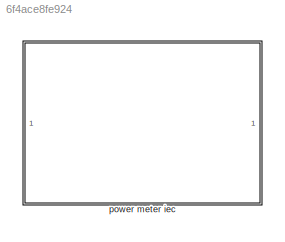
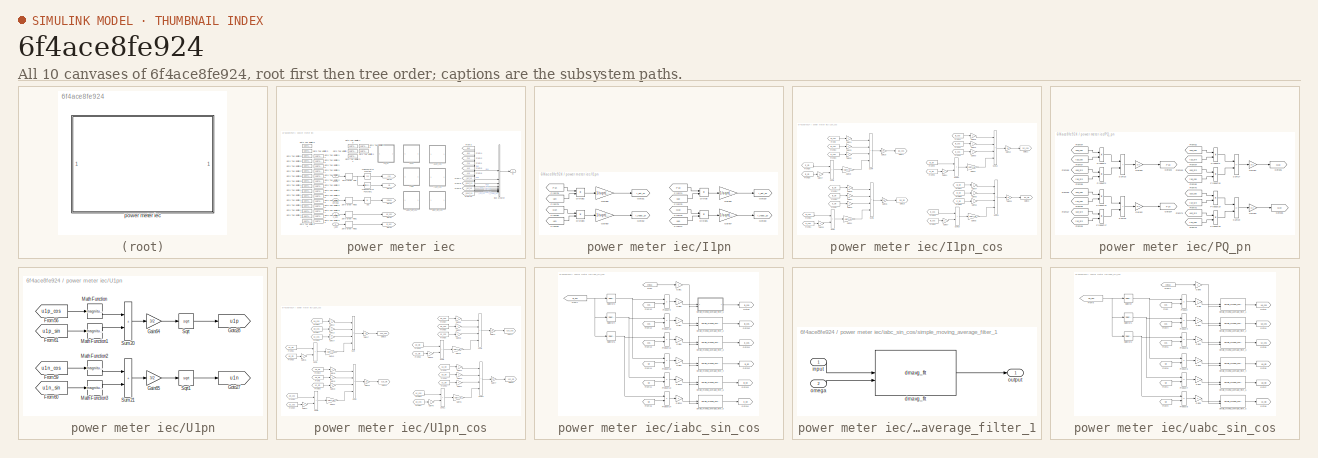
[diagram: thumbnail index - all 10 canvases of the model, root first then tree order]
MODEL slx_6f4ace8fe924
KIND library
CONFIG SolverName = VariableStepAuto
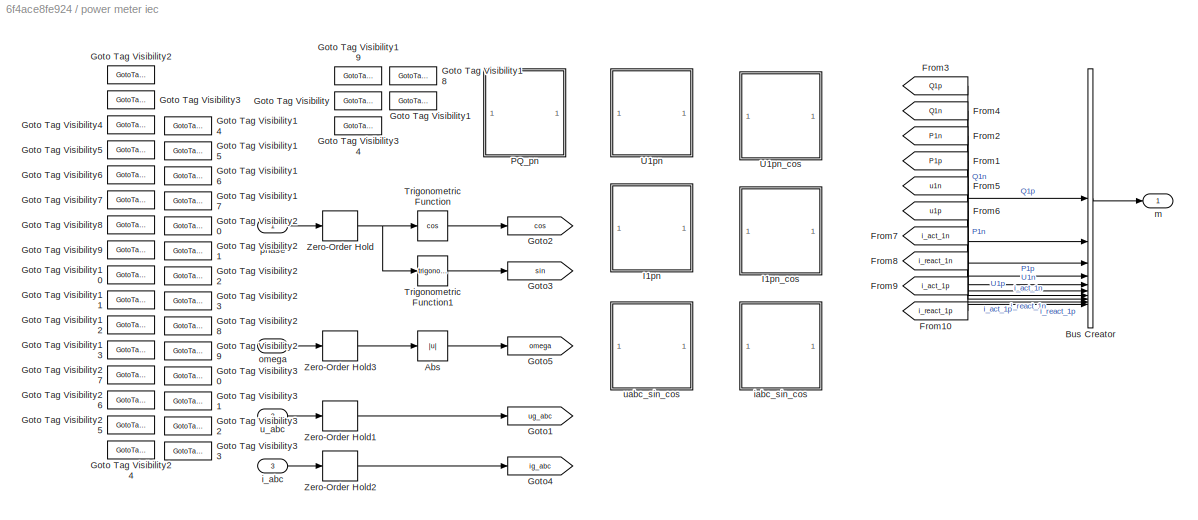
BLOCK [SubSystem] power meter iec
BLOCK [Abs] power meter iec/Abs
  SaturateOnIntegerOverflow = off
BLOCK [BusCreator] power meter iec/Bus Creator
  DisplayOption = bar
  InheritFromInputs = on
  Inputs = 10
BLOCK [From] power meter iec/From1
  GotoTag = P1p
BLOCK [From] power meter iec/From10
  GotoTag = i_react_1p
  TagVisibility = scoped
BLOCK [From] power meter iec/From2
  GotoTag = P1n
BLOCK [From] power meter iec/From3
  GotoTag = Q1p
BLOCK [From] power meter iec/From4
  GotoTag = Q1n
BLOCK [From] power meter iec/From5
  GotoTag = u1n
  TagVisibility = scoped
BLOCK [From] power meter iec/From6
  GotoTag = u1p
  TagVisibility = scoped
BLOCK [From] power meter iec/From7
  GotoTag = i_act_1n
  TagVisibility = scoped
BLOCK [From] power meter iec/From8
  GotoTag = i_react_1n
  TagVisibility = scoped
BLOCK [From] power meter iec/From9
  GotoTag = i_act_1p
  TagVisibility = scoped
BLOCK [GotoTagVisibility] power meter iec/Goto Tag Visibility
  GotoTag = cos
BLOCK [GotoTagVisibility] power meter iec/Goto Tag Visibility1
  GotoTag = sin
BLOCK [GotoTagVisibility] power meter iec/Goto Tag Visibility10
  GotoTag = ic_cos
BLOCK [GotoTagVisibility] power meter iec/Goto Tag Visibility11
  GotoTag = ia_sin
BLOCK [GotoTagVisibility] power meter iec/Goto Tag Visibility12
  GotoTag = ib_sin
BLOCK [GotoTagVisibility] power meter iec/Goto Tag Visibility13
  GotoTag = ic_sin
BLOCK [GotoTagVisibility] power meter iec/Goto Tag Visibility14
  GotoTag = u1p_cos
BLOCK [GotoTagVisibility] power meter iec/Goto Tag Visibility15
  GotoTag = u1n_cos
BLOCK [GotoTagVisibility] power meter iec/Goto Tag Visibility16
  GotoTag = u1p_sin
BLOCK [GotoTagVisibility] power meter iec/Goto Tag Visibility17
  GotoTag = u1n_sin
BLOCK [GotoTagVisibility] power meter iec/Goto Tag Visibility18
  GotoTag = u1n
BLOCK [GotoTagVisibility] power meter iec/Goto Tag Visibility19
  GotoTag = u1p
BLOCK [GotoTagVisibility] power meter iec/Goto Tag Visibility2
  GotoTag = ua_cos
BLOCK [GotoTagVisibility] power meter iec/Goto Tag Visibility20
  GotoTag = i1p_cos
BLOCK [GotoTagVisibility] power meter iec/Goto Tag Visibility21
  GotoTag = i1n_cos
BLOCK [GotoTagVisibility] power meter iec/Goto Tag Visibility22
  GotoTag = i1p_sin
BLOCK [GotoTagVisibility] power meter iec/Goto Tag Visibility23
  GotoTag = i1n_sin
BLOCK [GotoTagVisibility] power meter iec/Goto Tag Visibility24
  GotoTag = Q1n
BLOCK [GotoTagVisibility] power meter iec/Goto Tag Visibility25
  GotoTag = Q1p
BLOCK [GotoTagVisibility] power meter iec/Goto Tag Visibility26
  GotoTag = P1n
BLOCK [GotoTagVisibility] power meter iec/Goto Tag Visibility27
  GotoTag = P1p
BLOCK [GotoTagVisibility] power meter iec/Goto Tag Visibility28
  GotoTag = i_act_1n
BLOCK [GotoTagVisibility] power meter iec/Goto Tag Visibility29
  GotoTag = i_react_1n
BLOCK [GotoTagVisibility] power meter iec/Goto Tag Visibility3
  GotoTag = ub_cos
BLOCK [GotoTagVisibility] power meter iec/Goto Tag Visibility30
  GotoTag = i_act_1p
BLOCK [GotoTagVisibility] power meter iec/Goto Tag Visibility31
  GotoTag = i_react_1p
BLOCK [GotoTagVisibility] power meter iec/Goto Tag Visibility32
  GotoTag = ug_abc
BLOCK [GotoTagVisibility] power meter iec/Goto Tag Visibility33
  GotoTag = ig_abc
BLOCK [GotoTagVisibility] power meter iec/Goto Tag Visibility34
  GotoTag = omega
BLOCK [GotoTagVisibility] power meter iec/Goto Tag Visibility4
  GotoTag = uc_cos
BLOCK [GotoTagVisibility] power meter iec/Goto Tag Visibility5
  GotoTag = ua_sin
BLOCK [GotoTagVisibility] power meter iec/Goto Tag Visibility6
  GotoTag = ub_sin
BLOCK [GotoTagVisibility] power meter iec/Goto Tag Visibility7
  GotoTag = uc_sin
BLOCK [GotoTagVisibility] power meter iec/Goto Tag Visibility8
  GotoTag = ia_cos
BLOCK [GotoTagVisibility] power meter iec/Goto Tag Visibility9
  GotoTag = ib_cos
BLOCK [Goto] power meter iec/Goto1
  GotoTag = ug_abc
  TagVisibility = scoped
BLOCK [Goto] power meter iec/Goto2
  GotoTag = cos
  TagVisibility = scoped
BLOCK [Goto] power meter iec/Goto3
  GotoTag = sin
  TagVisibility = scoped
BLOCK [Goto] power meter iec/Goto4
  GotoTag = ig_abc
  TagVisibility = scoped
BLOCK [Goto] power meter iec/Goto5
  GotoTag = omega
  TagVisibility = scoped
BLOCK [SubSystem] power meter iec/I1pn
BLOCK [Product] power meter iec/I1pn/Divide
  Inputs = */
BLOCK [Product] power meter iec/I1pn/Divide1
  Inputs = */
BLOCK [Product] power meter iec/I1pn/Divide2
  Inputs = */
BLOCK [Product] power meter iec/I1pn/Divide3
  Inputs = */
BLOCK [From] power meter iec/I1pn/From74
  GotoTag = P1p
BLOCK [From] power meter iec/I1pn/From75
  GotoTag = u1p
BLOCK [From] power meter iec/I1pn/From76
  GotoTag = Q1p
BLOCK [From] power meter iec/I1pn/From77
  GotoTag = u1p
BLOCK [From] power meter iec/I1pn/From78
  GotoTag = P1n
BLOCK [From] power meter iec/I1pn/From79
  GotoTag = u1n
BLOCK [From] power meter iec/I1pn/From80
  GotoTag = Q1n
BLOCK [From] power meter iec/I1pn/From81
  GotoTag = u1n
BLOCK [Gain] power meter iec/I1pn/Gain66
  Gain = 1/sqrt(3)
BLOCK [Gain] power meter iec/I1pn/Gain67
  Gain = 1/sqrt(3)
BLOCK [Gain] power meter iec/I1pn/Gain68
  Gain = 1/sqrt(3)
BLOCK [Gain] power meter iec/I1pn/Gain69
  Gain = 1/sqrt(3)
BLOCK [Goto] power meter iec/I1pn/Goto29
  GotoTag = i_act_1p
  TagVisibility = scoped
BLOCK [Goto] power meter iec/I1pn/Goto30
  GotoTag = i_react_1p
  TagVisibility = scoped
BLOCK [Goto] power meter iec/I1pn/Goto31
  GotoTag = i_act_1n
  TagVisibility = scoped
BLOCK [Goto] power meter iec/I1pn/Goto32
  GotoTag = i_react_1n
  TagVisibility = scoped
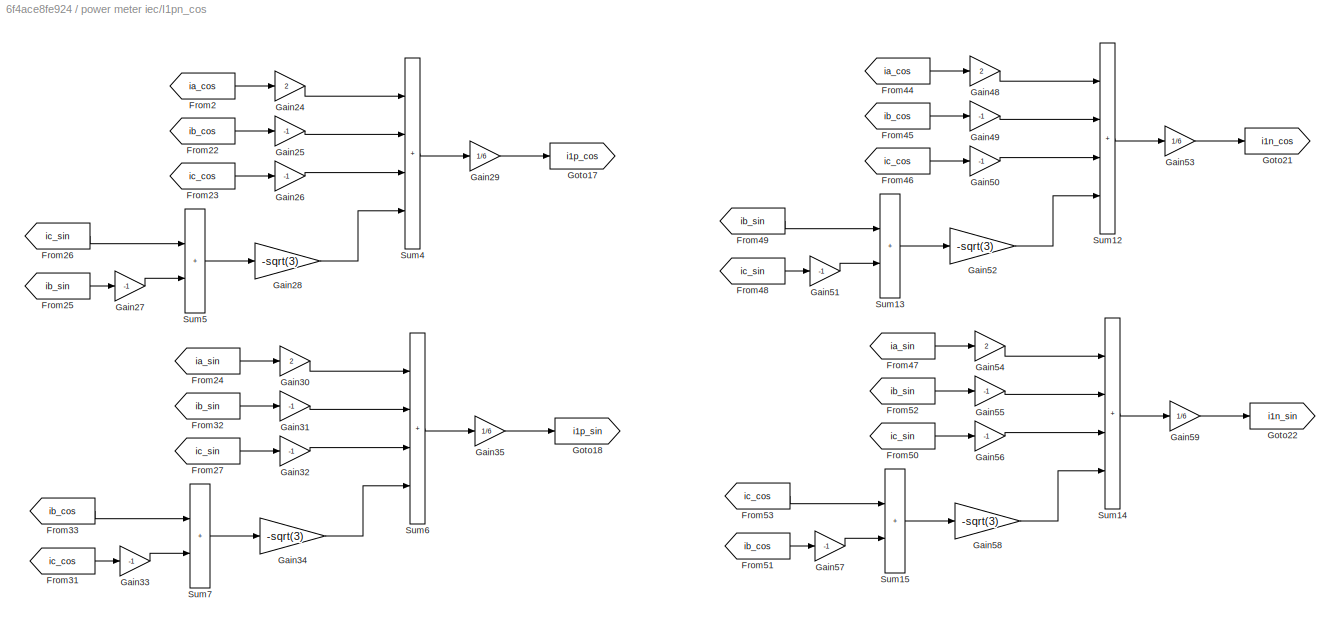
BLOCK [SubSystem] power meter iec/I1pn_cos
BLOCK [From] power meter iec/I1pn_cos/From2
  GotoTag = ia_cos
BLOCK [From] power meter iec/I1pn_cos/From22
  GotoTag = ib_cos
BLOCK [From] power meter iec/I1pn_cos/From23
  GotoTag = ic_cos
BLOCK [From] power meter iec/I1pn_cos/From24
  GotoTag = ia_sin
BLOCK [From] power meter iec/I1pn_cos/From25
  GotoTag = ib_sin
BLOCK [From] power meter iec/I1pn_cos/From26
  GotoTag = ic_sin
BLOCK [From] power meter iec/I1pn_cos/From27
  GotoTag = ic_sin
BLOCK [From] power meter iec/I1pn_cos/From31
  GotoTag = ic_cos
BLOCK [From] power meter iec/I1pn_cos/From32
  GotoTag = ib_sin
BLOCK [From] power meter iec/I1pn_cos/From33
  GotoTag = ib_cos
BLOCK [From] power meter iec/I1pn_cos/From44
  GotoTag = ia_cos
BLOCK [From] power meter iec/I1pn_cos/From45
  GotoTag = ib_cos
BLOCK [From] power meter iec/I1pn_cos/From46
  GotoTag = ic_cos
BLOCK [From] power meter iec/I1pn_cos/From47
  GotoTag = ia_sin
BLOCK [From] power meter iec/I1pn_cos/From48
  GotoTag = ic_sin
BLOCK [From] power meter iec/I1pn_cos/From49
  GotoTag = ib_sin
BLOCK [From] power meter iec/I1pn_cos/From50
  GotoTag = ic_sin
BLOCK [From] power meter iec/I1pn_cos/From51
  GotoTag = ib_cos
BLOCK [From] power meter iec/I1pn_cos/From52
  GotoTag = ib_sin
BLOCK [From] power meter iec/I1pn_cos/From53
  GotoTag = ic_cos
BLOCK [Gain] power meter iec/I1pn_cos/Gain24
  Gain = 2
BLOCK [Gain] power meter iec/I1pn_cos/Gain25
  Gain = -1
BLOCK [Gain] power meter iec/I1pn_cos/Gain26
  Gain = -1
BLOCK [Gain] power meter iec/I1pn_cos/Gain27
  Gain = -1
BLOCK [Gain] power meter iec/I1pn_cos/Gain28
  Gain = -sqrt(3)
BLOCK [Gain] power meter iec/I1pn_cos/Gain29
  Gain = 1/6
BLOCK [Gain] power meter iec/I1pn_cos/Gain30
  Gain = 2
BLOCK [Gain] power meter iec/I1pn_cos/Gain31
  Gain = -1
BLOCK [Gain] power meter iec/I1pn_cos/Gain32
  Gain = -1
BLOCK [Gain] power meter iec/I1pn_cos/Gain33
  Gain = -1
BLOCK [Gain] power meter iec/I1pn_cos/Gain34
  Gain = -sqrt(3)
BLOCK [Gain] power meter iec/I1pn_cos/Gain35
  Gain = 1/6
BLOCK [Gain] power meter iec/I1pn_cos/Gain48
  Gain = 2
BLOCK [Gain] power meter iec/I1pn_cos/Gain49
  Gain = -1
BLOCK [Gain] power meter iec/I1pn_cos/Gain50
  Gain = -1
BLOCK [Gain] power meter iec/I1pn_cos/Gain51
  Gain = -1
BLOCK [Gain] power meter iec/I1pn_cos/Gain52
  Gain = -sqrt(3)
BLOCK [Gain] power meter iec/I1pn_cos/Gain53
  Gain = 1/6
BLOCK [Gain] power meter iec/I1pn_cos/Gain54
  Gain = 2
BLOCK [Gain] power meter iec/I1pn_cos/Gain55
  Gain = -1
BLOCK [Gain] power meter iec/I1pn_cos/Gain56
  Gain = -1
BLOCK [Gain] power meter iec/I1pn_cos/Gain57
  Gain = -1
BLOCK [Gain] power meter iec/I1pn_cos/Gain58
  Gain = -sqrt(3)
BLOCK [Gain] power meter iec/I1pn_cos/Gain59
  Gain = 1/6
BLOCK [Goto] power meter iec/I1pn_cos/Goto17
  GotoTag = i1p_cos
  TagVisibility = scoped
BLOCK [Goto] power meter iec/I1pn_cos/Goto18
  GotoTag = i1p_sin
  TagVisibility = scoped
BLOCK [Goto] power meter iec/I1pn_cos/Goto21
  GotoTag = i1n_cos
  TagVisibility = scoped
BLOCK [Goto] power meter iec/I1pn_cos/Goto22
  GotoTag = i1n_sin
  TagVisibility = scoped
BLOCK [Sum] power meter iec/I1pn_cos/Sum12
  IconShape = rectangular
  Inputs = ++++
BLOCK [Sum] power meter iec/I1pn_cos/Sum13
  IconShape = rectangular
BLOCK [Sum] power meter iec/I1pn_cos/Sum14
  IconShape = rectangular
  Inputs = ++++
BLOCK [Sum] power meter iec/I1pn_cos/Sum15
  IconShape = rectangular
BLOCK [Sum] power meter iec/I1pn_cos/Sum4
  IconShape = rectangular
  Inputs = ++++
BLOCK [Sum] power meter iec/I1pn_cos/Sum5
  IconShape = rectangular
BLOCK [Sum] power meter iec/I1pn_cos/Sum6
  IconShape = rectangular
  Inputs = ++++
BLOCK [Sum] power meter iec/I1pn_cos/Sum7
  IconShape = rectangular
BLOCK [SubSystem] power meter iec/PQ_pn
BLOCK [From] power meter iec/PQ_pn/From54
  GotoTag = u1p_cos
BLOCK [From] power meter iec/PQ_pn/From55
  GotoTag = u1p_sin
BLOCK [From] power meter iec/PQ_pn/From57
  GotoTag = i1p_cos
BLOCK [From] power meter iec/PQ_pn/From58
  GotoTag = i1p_sin
BLOCK [From] power meter iec/PQ_pn/From62
  GotoTag = u1p_cos
BLOCK [From] power meter iec/PQ_pn/From63
  GotoTag = u1p_sin
BLOCK [From] power meter iec/PQ_pn/From64
  GotoTag = i1p_sin
BLOCK [From] power meter iec/PQ_pn/From65
  GotoTag = i1p_cos
BLOCK [From] power meter iec/PQ_pn/From66
  GotoTag = u1n_cos
BLOCK [From] power meter iec/PQ_pn/From67
  GotoTag = u1n_sin
BLOCK [From] power meter iec/PQ_pn/From68
  GotoTag = i1n_cos
BLOCK [From] power meter iec/PQ_pn/From69
  GotoTag = i1n_sin
BLOCK [From] power meter iec/PQ_pn/From70
  GotoTag = u1n_cos
BLOCK [From] power meter iec/PQ_pn/From71
  GotoTag = u1n_sin
BLOCK [From] power meter iec/PQ_pn/From72
  GotoTag = i1n_sin
BLOCK [From] power meter iec/PQ_pn/From73
  GotoTag = i1n_cos
BLOCK [Gain] power meter iec/PQ_pn/Gain60
  Gain = 3/2
BLOCK [Gain] power meter iec/PQ_pn/Gain61
  Gain = 3/2
BLOCK [Gain] power meter iec/PQ_pn/Gain62
  Gain = 3/2
BLOCK [Gain] power meter iec/PQ_pn/Gain63
  Gain = 3/2
BLOCK [Goto] power meter iec/PQ_pn/Goto23
  GotoTag = P1p
  TagVisibility = scoped
BLOCK [Goto] power meter iec/PQ_pn/Goto24
  GotoTag = P1n
  TagVisibility = scoped
BLOCK [Goto] power meter iec/PQ_pn/Goto25
  GotoTag = Q1n
  TagVisibility = scoped
BLOCK [Goto] power meter iec/PQ_pn/Goto26
  GotoTag = Q1p
  TagVisibility = scoped
BLOCK [Product] power meter iec/PQ_pn/Product1
  RndMeth = Zero
BLOCK [Product] power meter iec/PQ_pn/Product15
  RndMeth = Zero
BLOCK [Product] power meter iec/PQ_pn/Product16
  RndMeth = Zero
BLOCK [Product] power meter iec/PQ_pn/Product17
  RndMeth = Zero
BLOCK [Product] power meter iec/PQ_pn/Product18
  RndMeth = Zero
BLOCK [Product] power meter iec/PQ_pn/Product19
  RndMeth = Zero
BLOCK [Product] power meter iec/PQ_pn/Product2
  RndMeth = Zero
BLOCK [Product] power meter iec/PQ_pn/Product3
  RndMeth = Zero
BLOCK [Sum] power meter iec/PQ_pn/Sum16
  IconShape = rectangular
BLOCK [Sum] power meter iec/PQ_pn/Sum17
  IconShape = rectangular
  Inputs = +-
BLOCK [Sum] power meter iec/PQ_pn/Sum18
  IconShape = rectangular
BLOCK [Sum] power meter iec/PQ_pn/Sum19
  IconShape = rectangular
  Inputs = +-
BLOCK [Trigonometry] power meter iec/Trigonometric Function
  Operator = cos
BLOCK [Trigonometry] power meter iec/Trigonometric Function1
BLOCK [SubSystem] power meter iec/U1pn
BLOCK [From] power meter iec/U1pn/From56
  GotoTag = u1p_cos
BLOCK [From] power meter iec/U1pn/From59
  GotoTag = u1n_cos
BLOCK [From] power meter iec/U1pn/From60
  GotoTag = u1n_sin
BLOCK [From] power meter iec/U1pn/From61
  GotoTag = u1p_sin
BLOCK [Gain] power meter iec/U1pn/Gain64
  Gain = 3/2
BLOCK [Gain] power meter iec/U1pn/Gain65
  Gain = 3/2
BLOCK [Goto] power meter iec/U1pn/Goto27
  GotoTag = u1n
  TagVisibility = scoped
BLOCK [Goto] power meter iec/U1pn/Goto28
  GotoTag = u1p
  TagVisibility = scoped
BLOCK [Math] power meter iec/U1pn/Math Function
  Operator = magnitude^2
  SignedPower = on
BLOCK [Math] power meter iec/U1pn/Math Function1
  Operator = magnitude^2
  SignedPower = on
BLOCK [Math] power meter iec/U1pn/Math Function2
  Operator = magnitude^2
  SignedPower = on
BLOCK [Math] power meter iec/U1pn/Math Function3
  Operator = magnitude^2
  SignedPower = on
BLOCK [Sqrt] power meter iec/U1pn/Sqrt
BLOCK [Sqrt] power meter iec/U1pn/Sqrt1
BLOCK [Sum] power meter iec/U1pn/Sum20
  IconShape = rectangular
BLOCK [Sum] power meter iec/U1pn/Sum21
  IconShape = rectangular
BLOCK [SubSystem] power meter iec/U1pn_cos
BLOCK [From] power meter iec/U1pn_cos/From16
  GotoTag = ua_cos
BLOCK [From] power meter iec/U1pn_cos/From17
  GotoTag = ub_cos
BLOCK [From] power meter iec/U1pn_cos/From18
  GotoTag = uc_cos
BLOCK [From] power meter iec/U1pn_cos/From19
  GotoTag = ua_sin
BLOCK [From] power meter iec/U1pn_cos/From20
  GotoTag = ub_sin
BLOCK [From] power meter iec/U1pn_cos/From21
  GotoTag = uc_sin
BLOCK [From] power meter iec/U1pn_cos/From28
  GotoTag = uc_sin
BLOCK [From] power meter iec/U1pn_cos/From29
  GotoTag = uc_cos
BLOCK [From] power meter iec/U1pn_cos/From3
  GotoTag = ub_sin
BLOCK [From] power meter iec/U1pn_cos/From30
  GotoTag = ub_cos
BLOCK [From] power meter iec/U1pn_cos/From34
  GotoTag = ua_cos
BLOCK [From] power meter iec/U1pn_cos/From35
  GotoTag = ub_cos
BLOCK [From] power meter iec/U1pn_cos/From36
  GotoTag = uc_cos
BLOCK [From] power meter iec/U1pn_cos/From37
  GotoTag = ua_sin
BLOCK [From] power meter iec/U1pn_cos/From38
  GotoTag = uc_sin
BLOCK [From] power meter iec/U1pn_cos/From39
  GotoTag = ub_sin
BLOCK [From] power meter iec/U1pn_cos/From40
  GotoTag = uc_sin
BLOCK [From] power meter iec/U1pn_cos/From41
  GotoTag = ub_cos
BLOCK [From] power meter iec/U1pn_cos/From42
  GotoTag = ub_sin
BLOCK [From] power meter iec/U1pn_cos/From43
  GotoTag = uc_cos
BLOCK [Gain] power meter iec/U1pn_cos/Gain12
  Gain = 2
BLOCK [Gain] power meter iec/U1pn_cos/Gain13
  Gain = -1
BLOCK [Gain] power meter iec/U1pn_cos/Gain14
  Gain = -1
BLOCK [Gain] power meter iec/U1pn_cos/Gain15
  Gain = -1
BLOCK [Gain] power meter iec/U1pn_cos/Gain16
  Gain = -sqrt(3)
BLOCK [Gain] power meter iec/U1pn_cos/Gain17
  Gain = 1/6
BLOCK [Gain] power meter iec/U1pn_cos/Gain18
  Gain = 2
BLOCK [Gain] power meter iec/U1pn_cos/Gain19
  Gain = -1
BLOCK [Gain] power meter iec/U1pn_cos/Gain20
  Gain = -1
BLOCK [Gain] power meter iec/U1pn_cos/Gain21
  Gain = -1
BLOCK [Gain] power meter iec/U1pn_cos/Gain22
  Gain = -sqrt(3)
BLOCK [Gain] power meter iec/U1pn_cos/Gain23
  Gain = 1/6
BLOCK [Gain] power meter iec/U1pn_cos/Gain36
  Gain = 2
BLOCK [Gain] power meter iec/U1pn_cos/Gain37
  Gain = -1
BLOCK [Gain] power meter iec/U1pn_cos/Gain38
  Gain = -1
BLOCK [Gain] power meter iec/U1pn_cos/Gain39
  Gain = -1
BLOCK [Gain] power meter iec/U1pn_cos/Gain40
  Gain = -sqrt(3)
BLOCK [Gain] power meter iec/U1pn_cos/Gain41
  Gain = 1/6
BLOCK [Gain] power meter iec/U1pn_cos/Gain42
  Gain = 2
BLOCK [Gain] power meter iec/U1pn_cos/Gain43
  Gain = -1
BLOCK [Gain] power meter iec/U1pn_cos/Gain44
  Gain = -1
BLOCK [Gain] power meter iec/U1pn_cos/Gain45
  Gain = -1
BLOCK [Gain] power meter iec/U1pn_cos/Gain46
  Gain = -sqrt(3)
BLOCK [Gain] power meter iec/U1pn_cos/Gain47
  Gain = 1/6
BLOCK [Goto] power meter iec/U1pn_cos/Goto15
  GotoTag = u1p_cos
  TagVisibility = scoped
BLOCK [Goto] power meter iec/U1pn_cos/Goto16
  GotoTag = u1p_sin
  TagVisibility = scoped
BLOCK [Goto] power meter iec/U1pn_cos/Goto19
  GotoTag = u1n_cos
  TagVisibility = scoped
BLOCK [Goto] power meter iec/U1pn_cos/Goto20
  GotoTag = u1n_sin
  TagVisibility = scoped
BLOCK [Sum] power meter iec/U1pn_cos/Sum
  IconShape = rectangular
  Inputs = ++++
BLOCK [Sum] power meter iec/U1pn_cos/Sum1
  IconShape = rectangular
BLOCK [Sum] power meter iec/U1pn_cos/Sum10
  IconShape = rectangular
  Inputs = ++++
BLOCK [Sum] power meter iec/U1pn_cos/Sum11
  IconShape = rectangular
BLOCK [Sum] power meter iec/U1pn_cos/Sum2
  IconShape = rectangular
  Inputs = ++++
BLOCK [Sum] power meter iec/U1pn_cos/Sum3
  IconShape = rectangular
BLOCK [Sum] power meter iec/U1pn_cos/Sum8
  IconShape = rectangular
  Inputs = ++++
BLOCK [Sum] power meter iec/U1pn_cos/Sum9
  IconShape = rectangular
BLOCK [ZeroOrderHold] power meter iec/Zero-Order Hold
  SampleTime = ts
BLOCK [ZeroOrderHold] power meter iec/Zero-Order Hold1
  SampleTime = ts
BLOCK [ZeroOrderHold] power meter iec/Zero-Order Hold2
  SampleTime = ts
BLOCK [ZeroOrderHold] power meter iec/Zero-Order Hold3
  SampleTime = ts
BLOCK [Inport] power meter iec/i_abc
  Port = 3
BLOCK [SubSystem] power meter iec/iabc_sin_cos
BLOCK [From] power meter iec/iabc_sin_cos/From
  GotoTag = omega
  TagVisibility = scoped
BLOCK [From] power meter iec/iabc_sin_cos/From10
  CloseFcn = tagdialog Close
  GotoTag = cos
BLOCK [From] power meter iec/iabc_sin_cos/From11
  CloseFcn = tagdialog Close
  GotoTag = sin
BLOCK [From] power meter iec/iabc_sin_cos/From12
  CloseFcn = tagdialog Close
  GotoTag = cos
BLOCK [From] power meter iec/iabc_sin_cos/From13
  CloseFcn = tagdialog Close
  GotoTag = cos
BLOCK [From] power meter iec/iabc_sin_cos/From14
  CloseFcn = tagdialog Close
  GotoTag = sin
BLOCK [From] power meter iec/iabc_sin_cos/From15
  CloseFcn = tagdialog Close
  GotoTag = sin
BLOCK [From] power meter iec/iabc_sin_cos/From7
  GotoTag = ig_abc
  TagVisibility = global
BLOCK [Gain] power meter iec/iabc_sin_cos/Gain1
  Gain = 2
BLOCK [Gain] power meter iec/iabc_sin_cos/Gain10
  Gain = 2
BLOCK [Gain] power meter iec/iabc_sin_cos/Gain11
  Gain = 2
BLOCK [Gain] power meter iec/iabc_sin_cos/Gain6
  Gain = 2
BLOCK [Gain] power meter iec/iabc_sin_cos/Gain7
  Gain = 2
BLOCK [Gain] power meter iec/iabc_sin_cos/Gain8
  Gain = 2
BLOCK [Gain] power meter iec/iabc_sin_cos/Gain9
  Gain = 2
BLOCK [Goto] power meter iec/iabc_sin_cos/Goto10
  GotoTag = ib_cos
  TagVisibility = scoped
BLOCK [Goto] power meter iec/iabc_sin_cos/Goto11
  GotoTag = ic_cos
  TagVisibility = scoped
BLOCK [Goto] power meter iec/iabc_sin_cos/Goto12
  GotoTag = ia_sin
  TagVisibility = scoped
BLOCK [Goto] power meter iec/iabc_sin_cos/Goto13
  GotoTag = ib_sin
  TagVisibility = scoped
BLOCK [Goto] power meter iec/iabc_sin_cos/Goto14
  GotoTag = ic_sin
  TagVisibility = scoped
BLOCK [Goto] power meter iec/iabc_sin_cos/Goto9
  GotoTag = ia_cos
  TagVisibility = scoped
BLOCK [Product] power meter iec/iabc_sin_cos/Product10
  RndMeth = Zero
BLOCK [Product] power meter iec/iabc_sin_cos/Product11
  RndMeth = Zero
BLOCK [Product] power meter iec/iabc_sin_cos/Product12
  RndMeth = Zero
BLOCK [Product] power meter iec/iabc_sin_cos/Product13
  RndMeth = Zero
BLOCK [Product] power meter iec/iabc_sin_cos/Product14
  RndMeth = Zero
BLOCK [Product] power meter iec/iabc_sin_cos/Product9
  RndMeth = Zero
BLOCK [Selector] power meter iec/iabc_sin_cos/Selector3
  IndexOptions = Index vector (dialog)
  Indices = 1
  InputPortWidth = 3
  OutputSizes = 1
BLOCK [Selector] power meter iec/iabc_sin_cos/Selector4
  IndexOptions = Index vector (dialog)
  Indices = 2
  InputPortWidth = 3
  OutputSizes = 1
BLOCK [Selector] power meter iec/iabc_sin_cos/Selector5
  IndexOptions = Index vector (dialog)
  Indices = 3
  InputPortWidth = 3
  OutputSizes = 1
BLOCK [SubSystem] power meter iec/iabc_sin_cos/simple_moving_average_filter_1
BLOCK [Reference] power meter iec/iabc_sin_cos/simple_moving_average_filter_1/dmavg_flt  REF=moving_average_filter/dmavg_flt  (lib defined in slx_1df0ab8a00fc, slx_8375529f5822)
  SourceBlock = moving_average_filter/dmavg_flt
BLOCK [Inport] power meter iec/iabc_sin_cos/simple_moving_average_filter_1/input
BLOCK [Inport] power meter iec/iabc_sin_cos/simple_moving_average_filter_1/omega
  Port = 2
BLOCK [Outport] power meter iec/iabc_sin_cos/simple_moving_average_filter_1/output
BLOCK [Reference] power meter iec/iabc_sin_cos/simple_moving_average_filter_2  REF=$bdroot/power meter iec/iabc_sin_cos/simple_moving_average_filter_1
  SourceBlock = $bdroot/power meter iec/iabc_sin_cos/simple_moving_average_filter_1
  SourceType = SubSystem
BLOCK [Reference] power meter iec/iabc_sin_cos/simple_moving_average_filter_3  REF=$bdroot/power meter iec/iabc_sin_cos/simple_moving_average_filter_1
  SourceBlock = $bdroot/power meter iec/iabc_sin_cos/simple_moving_average_filter_1
  SourceType = SubSystem
BLOCK [Reference] power meter iec/iabc_sin_cos/simple_moving_average_filter_4  REF=$bdroot/power meter iec/iabc_sin_cos/simple_moving_average_filter_1
  SourceBlock = $bdroot/power meter iec/iabc_sin_cos/simple_moving_average_filter_1
  SourceType = SubSystem
BLOCK [Reference] power meter iec/iabc_sin_cos/simple_moving_average_filter_5  REF=$bdroot/power meter iec/iabc_sin_cos/simple_moving_average_filter_1
  SourceBlock = $bdroot/power meter iec/iabc_sin_cos/simple_moving_average_filter_1
  SourceType = SubSystem
BLOCK [Reference] power meter iec/iabc_sin_cos/simple_moving_average_filter_6  REF=$bdroot/power meter iec/iabc_sin_cos/simple_moving_average_filter_1
  SourceBlock = $bdroot/power meter iec/iabc_sin_cos/simple_moving_average_filter_1
  SourceType = SubSystem
BLOCK [Outport] power meter iec/m
BLOCK [Inport] power meter iec/omega
  Port = 4
BLOCK [Inport] power meter iec/phase
BLOCK [Inport] power meter iec/u_abc
  Port = 2
BLOCK [SubSystem] power meter iec/uabc_sin_cos
BLOCK [From] power meter iec/uabc_sin_cos/From
  CloseFcn = tagdialog Close
  GotoTag = cos
BLOCK [From] power meter iec/uabc_sin_cos/From1
  CloseFcn = tagdialog Close
  GotoTag = sin
BLOCK [From] power meter iec/uabc_sin_cos/From2
  GotoTag = omega
  TagVisibility = scoped
BLOCK [From] power meter iec/uabc_sin_cos/From4
  CloseFcn = tagdialog Close
  GotoTag = cos
BLOCK [From] power meter iec/uabc_sin_cos/From5
  CloseFcn = tagdialog Close
  GotoTag = cos
BLOCK [From] power meter iec/uabc_sin_cos/From6
  GotoTag = ug_abc
  TagVisibility = global
BLOCK [From] power meter iec/uabc_sin_cos/From8
  CloseFcn = tagdialog Close
  GotoTag = sin
BLOCK [From] power meter iec/uabc_sin_cos/From9
  CloseFcn = tagdialog Close
  GotoTag = sin
BLOCK [Gain] power meter iec/uabc_sin_cos/Gain
  Gain = 2
BLOCK [Gain] power meter iec/uabc_sin_cos/Gain1
  Gain = 2
BLOCK [Gain] power meter iec/uabc_sin_cos/Gain2
  Gain = 2
BLOCK [Gain] power meter iec/uabc_sin_cos/Gain3
  Gain = 2
BLOCK [Gain] power meter iec/uabc_sin_cos/Gain4
  Gain = 2
BLOCK [Gain] power meter iec/uabc_sin_cos/Gain5
  Gain = 2
BLOCK [Gain] power meter iec/uabc_sin_cos/Gain6
  Gain = 2
BLOCK [Goto] power meter iec/uabc_sin_cos/Goto1
  GotoTag = ua_cos
  TagVisibility = scoped
BLOCK [Goto] power meter iec/uabc_sin_cos/Goto4
  GotoTag = ub_cos
  TagVisibility = scoped
BLOCK [Goto] power meter iec/uabc_sin_cos/Goto5
  GotoTag = uc_cos
  TagVisibility = scoped
BLOCK [Goto] power meter iec/uabc_sin_cos/Goto6
  GotoTag = ua_sin
  TagVisibility = scoped
BLOCK [Goto] power meter iec/uabc_sin_cos/Goto7
  GotoTag = ub_sin
  TagVisibility = scoped
BLOCK [Goto] power meter iec/uabc_sin_cos/Goto8
  GotoTag = uc_sin
  TagVisibility = scoped
BLOCK [Product] power meter iec/uabc_sin_cos/Product
  RndMeth = Zero
BLOCK [Product] power meter iec/uabc_sin_cos/Product4
  RndMeth = Zero
BLOCK [Product] power meter iec/uabc_sin_cos/Product5
  RndMeth = Zero
BLOCK [Product] power meter iec/uabc_sin_cos/Product6
  RndMeth = Zero
BLOCK [Product] power meter iec/uabc_sin_cos/Product7
  RndMeth = Zero
BLOCK [Product] power meter iec/uabc_sin_cos/Product8
  RndMeth = Zero
BLOCK [Selector] power meter iec/uabc_sin_cos/Selector
  IndexOptions = Index vector (dialog)
  Indices = 1
  InputPortWidth = 3
  OutputSizes = 1
BLOCK [Selector] power meter iec/uabc_sin_cos/Selector1
  IndexOptions = Index vector (dialog)
  Indices = 2
  InputPortWidth = 3
  OutputSizes = 1
BLOCK [Selector] power meter iec/uabc_sin_cos/Selector2
  IndexOptions = Index vector (dialog)
  Indices = 3
  InputPortWidth = 3
  OutputSizes = 1
BLOCK [Reference] power meter iec/uabc_sin_cos/simple_moving_average_filter_1  REF=$bdroot/power meter iec/iabc_sin_cos/simple_moving_average_filter_1
  SourceBlock = $bdroot/power meter iec/iabc_sin_cos/simple_moving_average_filter_1
  SourceType = SubSystem
BLOCK [Reference] power meter iec/uabc_sin_cos/simple_moving_average_filter_2  REF=$bdroot/power meter iec/iabc_sin_cos/simple_moving_average_filter_1
  SourceBlock = $bdroot/power meter iec/iabc_sin_cos/simple_moving_average_filter_1
  SourceType = SubSystem
BLOCK [Reference] power meter iec/uabc_sin_cos/simple_moving_average_filter_3  REF=$bdroot/power meter iec/iabc_sin_cos/simple_moving_average_filter_1
  SourceBlock = $bdroot/power meter iec/iabc_sin_cos/simple_moving_average_filter_1
  SourceType = SubSystem
BLOCK [Reference] power meter iec/uabc_sin_cos/simple_moving_average_filter_4  REF=$bdroot/power meter iec/iabc_sin_cos/simple_moving_average_filter_1
  SourceBlock = $bdroot/power meter iec/iabc_sin_cos/simple_moving_average_filter_1
  SourceType = SubSystem
BLOCK [Reference] power meter iec/uabc_sin_cos/simple_moving_average_filter_5  REF=$bdroot/power meter iec/iabc_sin_cos/simple_moving_average_filter_1
  SourceBlock = $bdroot/power meter iec/iabc_sin_cos/simple_moving_average_filter_1
  SourceType = SubSystem
BLOCK [Reference] power meter iec/uabc_sin_cos/simple_moving_average_filter_6  REF=$bdroot/power meter iec/iabc_sin_cos/simple_moving_average_filter_1
  SourceBlock = $bdroot/power meter iec/iabc_sin_cos/simple_moving_average_filter_1
  SourceType = SubSystem
LINE power meter iec/Abs:1 -> power meter iec/Goto5:1
LINE power meter iec/Bus Creator:1 -> power meter iec/m:1
LINE power meter iec/From10:1 -> power meter iec/Bus Creator:10
LINE power meter iec/From1:1 -> power meter iec/Bus Creator:4
LINE power meter iec/From2:1 -> power meter iec/Bus Creator:3
LINE power meter iec/From3:1 -> power meter iec/Bus Creator:1
LINE power meter iec/From4:1 -> power meter iec/Bus Creator:2
LINE power meter iec/From5:1 -> power meter iec/Bus Creator:5
LINE power meter iec/From6:1 -> power meter iec/Bus Creator:6
LINE power meter iec/From7:1 -> power meter iec/Bus Creator:7
LINE power meter iec/From8:1 -> power meter iec/Bus Creator:8
LINE power meter iec/From9:1 -> power meter iec/Bus Creator:9
LINE power meter iec/I1pn/Divide1:1 -> power meter iec/I1pn/Gain67:1
LINE power meter iec/I1pn/Divide2:1 -> power meter iec/I1pn/Gain68:1
LINE power meter iec/I1pn/Divide3:1 -> power meter iec/I1pn/Gain69:1
LINE power meter iec/I1pn/Divide:1 -> power meter iec/I1pn/Gain66:1
LINE power meter iec/I1pn/From74:1 -> power meter iec/I1pn/Divide:1
LINE power meter iec/I1pn/From75:1 -> power meter iec/I1pn/Divide:2
LINE power meter iec/I1pn/From76:1 -> power meter iec/I1pn/Divide1:1
LINE power meter iec/I1pn/From77:1 -> power meter iec/I1pn/Divide1:2
LINE power meter iec/I1pn/From78:1 -> power meter iec/I1pn/Divide2:1
LINE power meter iec/I1pn/From79:1 -> power meter iec/I1pn/Divide2:2
LINE power meter iec/I1pn/From80:1 -> power meter iec/I1pn/Divide3:1
LINE power meter iec/I1pn/From81:1 -> power meter iec/I1pn/Divide3:2
LINE power meter iec/I1pn/Gain66:1 -> power meter iec/I1pn/Goto29:1
LINE power meter iec/I1pn/Gain67:1 -> power meter iec/I1pn/Goto30:1
LINE power meter iec/I1pn/Gain68:1 -> power meter iec/I1pn/Goto31:1
LINE power meter iec/I1pn/Gain69:1 -> power meter iec/I1pn/Goto32:1
LINE power meter iec/I1pn_cos/From22:1 -> power meter iec/I1pn_cos/Gain25:1
LINE power meter iec/I1pn_cos/From23:1 -> power meter iec/I1pn_cos/Gain26:1
LINE power meter iec/I1pn_cos/From24:1 -> power meter iec/I1pn_cos/Gain30:1
LINE power meter iec/I1pn_cos/From25:1 -> power meter iec/I1pn_cos/Gain27:1
LINE power meter iec/I1pn_cos/From26:1 -> power meter iec/I1pn_cos/Sum5:1
LINE power meter iec/I1pn_cos/From27:1 -> power meter iec/I1pn_cos/Gain32:1
LINE power meter iec/I1pn_cos/From2:1 -> power meter iec/I1pn_cos/Gain24:1
LINE power meter iec/I1pn_cos/From31:1 -> power meter iec/I1pn_cos/Gain33:1
LINE power meter iec/I1pn_cos/From32:1 -> power meter iec/I1pn_cos/Gain31:1
LINE power meter iec/I1pn_cos/From33:1 -> power meter iec/I1pn_cos/Sum7:1
LINE power meter iec/I1pn_cos/From44:1 -> power meter iec/I1pn_cos/Gain48:1
LINE power meter iec/I1pn_cos/From45:1 -> power meter iec/I1pn_cos/Gain49:1
LINE power meter iec/I1pn_cos/From46:1 -> power meter iec/I1pn_cos/Gain50:1
LINE power meter iec/I1pn_cos/From47:1 -> power meter iec/I1pn_cos/Gain54:1
LINE power meter iec/I1pn_cos/From48:1 -> power meter iec/I1pn_cos/Gain51:1
LINE power meter iec/I1pn_cos/From49:1 -> power meter iec/I1pn_cos/Sum13:1
LINE power meter iec/I1pn_cos/From50:1 -> power meter iec/I1pn_cos/Gain56:1
LINE power meter iec/I1pn_cos/From51:1 -> power meter iec/I1pn_cos/Gain57:1
LINE power meter iec/I1pn_cos/From52:1 -> power meter iec/I1pn_cos/Gain55:1
LINE power meter iec/I1pn_cos/From53:1 -> power meter iec/I1pn_cos/Sum15:1
LINE power meter iec/I1pn_cos/Gain24:1 -> power meter iec/I1pn_cos/Sum4:1
LINE power meter iec/I1pn_cos/Gain25:1 -> power meter iec/I1pn_cos/Sum4:2
LINE power meter iec/I1pn_cos/Gain26:1 -> power meter iec/I1pn_cos/Sum4:3
LINE power meter iec/I1pn_cos/Gain27:1 -> power meter iec/I1pn_cos/Sum5:2
LINE power meter iec/I1pn_cos/Gain28:1 -> power meter iec/I1pn_cos/Sum4:4
LINE power meter iec/I1pn_cos/Gain29:1 -> power meter iec/I1pn_cos/Goto17:1
LINE power meter iec/I1pn_cos/Gain30:1 -> power meter iec/I1pn_cos/Sum6:1
LINE power meter iec/I1pn_cos/Gain31:1 -> power meter iec/I1pn_cos/Sum6:2
LINE power meter iec/I1pn_cos/Gain32:1 -> power meter iec/I1pn_cos/Sum6:3
LINE power meter iec/I1pn_cos/Gain33:1 -> power meter iec/I1pn_cos/Sum7:2
LINE power meter iec/I1pn_cos/Gain34:1 -> power meter iec/I1pn_cos/Sum6:4
LINE power meter iec/I1pn_cos/Gain35:1 -> power meter iec/I1pn_cos/Goto18:1
LINE power meter iec/I1pn_cos/Gain48:1 -> power meter iec/I1pn_cos/Sum12:1
LINE power meter iec/I1pn_cos/Gain49:1 -> power meter iec/I1pn_cos/Sum12:2
LINE power meter iec/I1pn_cos/Gain50:1 -> power meter iec/I1pn_cos/Sum12:3
LINE power meter iec/I1pn_cos/Gain51:1 -> power meter iec/I1pn_cos/Sum13:2
LINE power meter iec/I1pn_cos/Gain52:1 -> power meter iec/I1pn_cos/Sum12:4
LINE power meter iec/I1pn_cos/Gain53:1 -> power meter iec/I1pn_cos/Goto21:1
LINE power meter iec/I1pn_cos/Gain54:1 -> power meter iec/I1pn_cos/Sum14:1
LINE power meter iec/I1pn_cos/Gain55:1 -> power meter iec/I1pn_cos/Sum14:2
LINE power meter iec/I1pn_cos/Gain56:1 -> power meter iec/I1pn_cos/Sum14:3
LINE power meter iec/I1pn_cos/Gain57:1 -> power meter iec/I1pn_cos/Sum15:2
LINE power meter iec/I1pn_cos/Gain58:1 -> power meter iec/I1pn_cos/Sum14:4
LINE power meter iec/I1pn_cos/Gain59:1 -> power meter iec/I1pn_cos/Goto22:1
LINE power meter iec/I1pn_cos/Sum12:1 -> power meter iec/I1pn_cos/Gain53:1
LINE power meter iec/I1pn_cos/Sum13:1 -> power meter iec/I1pn_cos/Gain52:1
LINE power meter iec/I1pn_cos/Sum14:1 -> power meter iec/I1pn_cos/Gain59:1
LINE power meter iec/I1pn_cos/Sum15:1 -> power meter iec/I1pn_cos/Gain58:1
LINE power meter iec/I1pn_cos/Sum4:1 -> power meter iec/I1pn_cos/Gain29:1
LINE power meter iec/I1pn_cos/Sum5:1 -> power meter iec/I1pn_cos/Gain28:1
LINE power meter iec/I1pn_cos/Sum6:1 -> power meter iec/I1pn_cos/Gain35:1
LINE power meter iec/I1pn_cos/Sum7:1 -> power meter iec/I1pn_cos/Gain34:1
LINE power meter iec/PQ_pn/From54:1 -> power meter iec/PQ_pn/Product1:1
LINE power meter iec/PQ_pn/From55:1 -> power meter iec/PQ_pn/Product2:1
LINE power meter iec/PQ_pn/From57:1 -> power meter iec/PQ_pn/Product1:2
LINE power meter iec/PQ_pn/From58:1 -> power meter iec/PQ_pn/Product2:2
LINE power meter iec/PQ_pn/From62:1 -> power meter iec/PQ_pn/Product3:1
LINE power meter iec/PQ_pn/From63:1 -> power meter iec/PQ_pn/Product15:1
LINE power meter iec/PQ_pn/From64:1 -> power meter iec/PQ_pn/Product3:2
LINE power meter iec/PQ_pn/From65:1 -> power meter iec/PQ_pn/Product15:2
LINE power meter iec/PQ_pn/From66:1 -> power meter iec/PQ_pn/Product16:1
LINE power meter iec/PQ_pn/From67:1 -> power meter iec/PQ_pn/Product17:1
LINE power meter iec/PQ_pn/From68:1 -> power meter iec/PQ_pn/Product16:2
LINE power meter iec/PQ_pn/From69:1 -> power meter iec/PQ_pn/Product17:2
LINE power meter iec/PQ_pn/From70:1 -> power meter iec/PQ_pn/Product19:1
LINE power meter iec/PQ_pn/From71:1 -> power meter iec/PQ_pn/Product18:1
LINE power meter iec/PQ_pn/From72:1 -> power meter iec/PQ_pn/Product19:2
LINE power meter iec/PQ_pn/From73:1 -> power meter iec/PQ_pn/Product18:2
LINE power meter iec/PQ_pn/Gain60:1 -> power meter iec/PQ_pn/Goto23:1
LINE power meter iec/PQ_pn/Gain61:1 -> power meter iec/PQ_pn/Goto26:1
LINE power meter iec/PQ_pn/Gain62:1 -> power meter iec/PQ_pn/Goto24:1
LINE power meter iec/PQ_pn/Gain63:1 -> power meter iec/PQ_pn/Goto25:1
LINE power meter iec/PQ_pn/Product15:1 -> power meter iec/PQ_pn/Sum17:2
LINE power meter iec/PQ_pn/Product16:1 -> power meter iec/PQ_pn/Sum18:1
LINE power meter iec/PQ_pn/Product17:1 -> power meter iec/PQ_pn/Sum18:2
LINE power meter iec/PQ_pn/Product18:1 -> power meter iec/PQ_pn/Sum19:2
LINE power meter iec/PQ_pn/Product19:1 -> power meter iec/PQ_pn/Sum19:1
LINE power meter iec/PQ_pn/Product1:1 -> power meter iec/PQ_pn/Sum16:1
LINE power meter iec/PQ_pn/Product2:1 -> power meter iec/PQ_pn/Sum16:2
LINE power meter iec/PQ_pn/Product3:1 -> power meter iec/PQ_pn/Sum17:1
LINE power meter iec/PQ_pn/Sum16:1 -> power meter iec/PQ_pn/Gain60:1
LINE power meter iec/PQ_pn/Sum17:1 -> power meter iec/PQ_pn/Gain61:1
LINE power meter iec/PQ_pn/Sum18:1 -> power meter iec/PQ_pn/Gain62:1
LINE power meter iec/PQ_pn/Sum19:1 -> power meter iec/PQ_pn/Gain63:1
LINE power meter iec/Trigonometric Function1:1 -> power meter iec/Goto3:1
LINE power meter iec/Trigonometric Function:1 -> power meter iec/Goto2:1
LINE power meter iec/U1pn/From56:1 -> power meter iec/U1pn/Math Function:1
LINE power meter iec/U1pn/From59:1 -> power meter iec/U1pn/Math Function2:1
LINE power meter iec/U1pn/From60:1 -> power meter iec/U1pn/Math Function3:1
LINE power meter iec/U1pn/From61:1 -> power meter iec/U1pn/Math Function1:1
LINE power meter iec/U1pn/Gain64:1 -> power meter iec/U1pn/Sqrt:1
LINE power meter iec/U1pn/Gain65:1 -> power meter iec/U1pn/Sqrt1:1
LINE power meter iec/U1pn/Math Function1:1 -> power meter iec/U1pn/Sum20:2
LINE power meter iec/U1pn/Math Function2:1 -> power meter iec/U1pn/Sum21:1
LINE power meter iec/U1pn/Math Function3:1 -> power meter iec/U1pn/Sum21:2
LINE power meter iec/U1pn/Math Function:1 -> power meter iec/U1pn/Sum20:1
LINE power meter iec/U1pn/Sqrt1:1 -> power meter iec/U1pn/Goto27:1
LINE power meter iec/U1pn/Sqrt:1 -> power meter iec/U1pn/Goto28:1
LINE power meter iec/U1pn/Sum20:1 -> power meter iec/U1pn/Gain64:1
LINE power meter iec/U1pn/Sum21:1 -> power meter iec/U1pn/Gain65:1
LINE power meter iec/U1pn_cos/From16:1 -> power meter iec/U1pn_cos/Gain12:1
LINE power meter iec/U1pn_cos/From17:1 -> power meter iec/U1pn_cos/Gain13:1
LINE power meter iec/U1pn_cos/From18:1 -> power meter iec/U1pn_cos/Gain14:1
LINE power meter iec/U1pn_cos/From19:1 -> power meter iec/U1pn_cos/Gain18:1
LINE power meter iec/U1pn_cos/From20:1 -> power meter iec/U1pn_cos/Gain15:1
LINE power meter iec/U1pn_cos/From21:1 -> power meter iec/U1pn_cos/Sum1:1
LINE power meter iec/U1pn_cos/From28:1 -> power meter iec/U1pn_cos/Gain20:1
LINE power meter iec/U1pn_cos/From29:1 -> power meter iec/U1pn_cos/Gain21:1
LINE power meter iec/U1pn_cos/From30:1 -> power meter iec/U1pn_cos/Sum3:1
LINE power meter iec/U1pn_cos/From34:1 -> power meter iec/U1pn_cos/Gain36:1
LINE power meter iec/U1pn_cos/From35:1 -> power meter iec/U1pn_cos/Gain37:1
LINE power meter iec/U1pn_cos/From36:1 -> power meter iec/U1pn_cos/Gain38:1
LINE power meter iec/U1pn_cos/From37:1 -> power meter iec/U1pn_cos/Gain42:1
LINE power meter iec/U1pn_cos/From38:1 -> power meter iec/U1pn_cos/Gain39:1
LINE power meter iec/U1pn_cos/From39:1 -> power meter iec/U1pn_cos/Sum9:1
LINE power meter iec/U1pn_cos/From3:1 -> power meter iec/U1pn_cos/Gain19:1
LINE power meter iec/U1pn_cos/From40:1 -> power meter iec/U1pn_cos/Gain44:1
LINE power meter iec/U1pn_cos/From41:1 -> power meter iec/U1pn_cos/Gain45:1
LINE power meter iec/U1pn_cos/From42:1 -> power meter iec/U1pn_cos/Gain43:1
LINE power meter iec/U1pn_cos/From43:1 -> power meter iec/U1pn_cos/Sum11:1
LINE power meter iec/U1pn_cos/Gain12:1 -> power meter iec/U1pn_cos/Sum:1
LINE power meter iec/U1pn_cos/Gain13:1 -> power meter iec/U1pn_cos/Sum:2
LINE power meter iec/U1pn_cos/Gain14:1 -> power meter iec/U1pn_cos/Sum:3
LINE power meter iec/U1pn_cos/Gain15:1 -> power meter iec/U1pn_cos/Sum1:2
LINE power meter iec/U1pn_cos/Gain16:1 -> power meter iec/U1pn_cos/Sum:4
LINE power meter iec/U1pn_cos/Gain17:1 -> power meter iec/U1pn_cos/Goto15:1
LINE power meter iec/U1pn_cos/Gain18:1 -> power meter iec/U1pn_cos/Sum2:1
LINE power meter iec/U1pn_cos/Gain19:1 -> power meter iec/U1pn_cos/Sum2:2
LINE power meter iec/U1pn_cos/Gain20:1 -> power meter iec/U1pn_cos/Sum2:3
LINE power meter iec/U1pn_cos/Gain21:1 -> power meter iec/U1pn_cos/Sum3:2
LINE power meter iec/U1pn_cos/Gain22:1 -> power meter iec/U1pn_cos/Sum2:4
LINE power meter iec/U1pn_cos/Gain23:1 -> power meter iec/U1pn_cos/Goto16:1
LINE power meter iec/U1pn_cos/Gain36:1 -> power meter iec/U1pn_cos/Sum8:1
LINE power meter iec/U1pn_cos/Gain37:1 -> power meter iec/U1pn_cos/Sum8:2
LINE power meter iec/U1pn_cos/Gain38:1 -> power meter iec/U1pn_cos/Sum8:3
LINE power meter iec/U1pn_cos/Gain39:1 -> power meter iec/U1pn_cos/Sum9:2
LINE power meter iec/U1pn_cos/Gain40:1 -> power meter iec/U1pn_cos/Sum8:4
LINE power meter iec/U1pn_cos/Gain41:1 -> power meter iec/U1pn_cos/Goto19:1
LINE power meter iec/U1pn_cos/Gain42:1 -> power meter iec/U1pn_cos/Sum10:1
LINE power meter iec/U1pn_cos/Gain43:1 -> power meter iec/U1pn_cos/Sum10:2
LINE power meter iec/U1pn_cos/Gain44:1 -> power meter iec/U1pn_cos/Sum10:3
LINE power meter iec/U1pn_cos/Gain45:1 -> power meter iec/U1pn_cos/Sum11:2
LINE power meter iec/U1pn_cos/Gain46:1 -> power meter iec/U1pn_cos/Sum10:4
LINE power meter iec/U1pn_cos/Gain47:1 -> power meter iec/U1pn_cos/Goto20:1
LINE power meter iec/U1pn_cos/Sum10:1 -> power meter iec/U1pn_cos/Gain47:1
LINE power meter iec/U1pn_cos/Sum11:1 -> power meter iec/U1pn_cos/Gain46:1
LINE power meter iec/U1pn_cos/Sum1:1 -> power meter iec/U1pn_cos/Gain16:1
LINE power meter iec/U1pn_cos/Sum2:1 -> power meter iec/U1pn_cos/Gain23:1
LINE power meter iec/U1pn_cos/Sum3:1 -> power meter iec/U1pn_cos/Gain22:1
LINE power meter iec/U1pn_cos/Sum8:1 -> power meter iec/U1pn_cos/Gain41:1
LINE power meter iec/U1pn_cos/Sum9:1 -> power meter iec/U1pn_cos/Gain40:1
LINE power meter iec/U1pn_cos/Sum:1 -> power meter iec/U1pn_cos/Gain17:1
LINE power meter iec/Zero-Order Hold1:1 -> power meter iec/Goto1:1
LINE power meter iec/Zero-Order Hold2:1 -> power meter iec/Goto4:1
LINE power meter iec/Zero-Order Hold3:1 -> power meter iec/Abs:1
NET power meter iec/Zero-Order Hold:1 -> power meter iec/Trigonometric Function1:1, power meter iec/Trigonometric Function:1
LINE power meter iec/i_abc:1 -> power meter iec/Zero-Order Hold2:1
LINE power meter iec/iabc_sin_cos/From10:1 -> power meter iec/iabc_sin_cos/Product9:2
LINE power meter iec/iabc_sin_cos/From11:1 -> power meter iec/iabc_sin_cos/Product13:2
LINE power meter iec/iabc_sin_cos/From12:1 -> power meter iec/iabc_sin_cos/Product10:2
LINE power meter iec/iabc_sin_cos/From13:1 -> power meter iec/iabc_sin_cos/Product11:2
LINE power meter iec/iabc_sin_cos/From14:1 -> power meter iec/iabc_sin_cos/Product12:2
LINE power meter iec/iabc_sin_cos/From15:1 -> power meter iec/iabc_sin_cos/Product14:2
NET power meter iec/iabc_sin_cos/From7:1 -> power meter iec/iabc_sin_cos/Selector3:1, power meter iec/iabc_sin_cos/Selector4:1, power meter iec/iabc_sin_cos/Selector5:1
LINE power meter iec/iabc_sin_cos/From:1 -> power meter iec/iabc_sin_cos/Gain1:1
LINE power meter iec/iabc_sin_cos/Gain10:1 -> power meter iec/iabc_sin_cos/simple_moving_average_filter_5:1
LINE power meter iec/iabc_sin_cos/Gain11:1 -> power meter iec/iabc_sin_cos/simple_moving_average_filter_6:1
NET power meter iec/iabc_sin_cos/Gain1:1 -> power meter iec/iabc_sin_cos/simple_moving_average_filter_1:2, power meter iec/iabc_sin_cos/simple_moving_average_filter_2:2, power meter iec/iabc_sin_cos/simple_moving_average_filter_3:2, power meter iec/iabc_sin_cos/simple_moving_average_filter_4:2, power meter iec/iabc_sin_cos/simple_moving_average_filter_5:2, power meter iec/iabc_sin_cos/simple_moving_average_filter_6:2
LINE power meter iec/iabc_sin_cos/Gain6:1 -> power meter iec/iabc_sin_cos/simple_moving_average_filter_1:1
LINE power meter iec/iabc_sin_cos/Gain7:1 -> power meter iec/iabc_sin_cos/simple_moving_average_filter_2:1
LINE power meter iec/iabc_sin_cos/Gain8:1 -> power meter iec/iabc_sin_cos/simple_moving_average_filter_3:1
LINE power meter iec/iabc_sin_cos/Gain9:1 -> power meter iec/iabc_sin_cos/simple_moving_average_filter_4:1
LINE power meter iec/iabc_sin_cos/Product10:1 -> power meter iec/iabc_sin_cos/Gain7:1
LINE power meter iec/iabc_sin_cos/Product11:1 -> power meter iec/iabc_sin_cos/Gain8:1
LINE power meter iec/iabc_sin_cos/Product12:1 -> power meter iec/iabc_sin_cos/Gain9:1
LINE power meter iec/iabc_sin_cos/Product13:1 -> power meter iec/iabc_sin_cos/Gain10:1
LINE power meter iec/iabc_sin_cos/Product14:1 -> power meter iec/iabc_sin_cos/Gain11:1
LINE power meter iec/iabc_sin_cos/Product9:1 -> power meter iec/iabc_sin_cos/Gain6:1
NET power meter iec/iabc_sin_cos/Selector3:1 -> power meter iec/iabc_sin_cos/Product12:1, power meter iec/iabc_sin_cos/Product9:1
NET power meter iec/iabc_sin_cos/Selector4:1 -> power meter iec/iabc_sin_cos/Product10:1, power meter iec/iabc_sin_cos/Product13:1
NET power meter iec/iabc_sin_cos/Selector5:1 -> power meter iec/iabc_sin_cos/Product11:1, power meter iec/iabc_sin_cos/Product14:1
LINE power meter iec/iabc_sin_cos/simple_moving_average_filter_1/dmavg_flt:1 -> power meter iec/iabc_sin_cos/simple_moving_average_filter_1/output:1
LINE power meter iec/iabc_sin_cos/simple_moving_average_filter_1/input:1 -> power meter iec/iabc_sin_cos/simple_moving_average_filter_1/dmavg_flt:1
LINE power meter iec/iabc_sin_cos/simple_moving_average_filter_1/omega:1 -> power meter iec/iabc_sin_cos/simple_moving_average_filter_1/dmavg_flt:2
LINE power meter iec/iabc_sin_cos/simple_moving_average_filter_1:1 -> power meter iec/iabc_sin_cos/Goto9:1
LINE power meter iec/iabc_sin_cos/simple_moving_average_filter_2:1 -> power meter iec/iabc_sin_cos/Goto10:1
LINE power meter iec/iabc_sin_cos/simple_moving_average_filter_3:1 -> power meter iec/iabc_sin_cos/Goto11:1
LINE power meter iec/iabc_sin_cos/simple_moving_average_filter_4:1 -> power meter iec/iabc_sin_cos/Goto12:1
LINE power meter iec/iabc_sin_cos/simple_moving_average_filter_5:1 -> power meter iec/iabc_sin_cos/Goto13:1
LINE power meter iec/iabc_sin_cos/simple_moving_average_filter_6:1 -> power meter iec/iabc_sin_cos/Goto14:1
LINE power meter iec/omega:1 -> power meter iec/Zero-Order Hold3:1
LINE power meter iec/phase:1 -> power meter iec/Zero-Order Hold:1
LINE power meter iec/u_abc:1 -> power meter iec/Zero-Order Hold1:1
LINE power meter iec/uabc_sin_cos/From1:1 -> power meter iec/uabc_sin_cos/Product7:2
LINE power meter iec/uabc_sin_cos/From2:1 -> power meter iec/uabc_sin_cos/Gain6:1
LINE power meter iec/uabc_sin_cos/From4:1 -> power meter iec/uabc_sin_cos/Product4:2
LINE power meter iec/uabc_sin_cos/From5:1 -> power meter iec/uabc_sin_cos/Product5:2
NET power meter iec/uabc_sin_cos/From6:1 -> power meter iec/uabc_sin_cos/Selector1:1, power meter iec/uabc_sin_cos/Selector2:1, power meter iec/uabc_sin_cos/Selector:1
LINE power meter iec/uabc_sin_cos/From8:1 -> power meter iec/uabc_sin_cos/Product6:2
LINE power meter iec/uabc_sin_cos/From9:1 -> power meter iec/uabc_sin_cos/Product8:2
LINE power meter iec/uabc_sin_cos/From:1 -> power meter iec/uabc_sin_cos/Product:2
LINE power meter iec/uabc_sin_cos/Gain1:1 -> power meter iec/uabc_sin_cos/simple_moving_average_filter_2:1
LINE power meter iec/uabc_sin_cos/Gain2:1 -> power meter iec/uabc_sin_cos/simple_moving_average_filter_3:1
LINE power meter iec/uabc_sin_cos/Gain3:1 -> power meter iec/uabc_sin_cos/simple_moving_average_filter_4:1
LINE power meter iec/uabc_sin_cos/Gain4:1 -> power meter iec/uabc_sin_cos/simple_moving_average_filter_5:1
LINE power meter iec/uabc_sin_cos/Gain5:1 -> power meter iec/uabc_sin_cos/simple_moving_average_filter_6:1
NET power meter iec/uabc_sin_cos/Gain6:1 -> power meter iec/uabc_sin_cos/simple_moving_average_filter_1:2, power meter iec/uabc_sin_cos/simple_moving_average_filter_2:2, power meter iec/uabc_sin_cos/simple_moving_average_filter_3:2, power meter iec/uabc_sin_cos/simple_moving_average_filter_4:2, power meter iec/uabc_sin_cos/simple_moving_average_filter_5:2, power meter iec/uabc_sin_cos/simple_moving_average_filter_6:2
LINE power meter iec/uabc_sin_cos/Gain:1 -> power meter iec/uabc_sin_cos/simple_moving_average_filter_1:1
LINE power meter iec/uabc_sin_cos/Product4:1 -> power meter iec/uabc_sin_cos/Gain1:1
LINE power meter iec/uabc_sin_cos/Product5:1 -> power meter iec/uabc_sin_cos/Gain2:1
LINE power meter iec/uabc_sin_cos/Product6:1 -> power meter iec/uabc_sin_cos/Gain3:1
LINE power meter iec/uabc_sin_cos/Product7:1 -> power meter iec/uabc_sin_cos/Gain4:1
LINE power meter iec/uabc_sin_cos/Product8:1 -> power meter iec/uabc_sin_cos/Gain5:1
LINE power meter iec/uabc_sin_cos/Product:1 -> power meter iec/uabc_sin_cos/Gain:1
NET power meter iec/uabc_sin_cos/Selector1:1 -> power meter iec/uabc_sin_cos/Product4:1, power meter iec/uabc_sin_cos/Product7:1
NET power meter iec/uabc_sin_cos/Selector2:1 -> power meter iec/uabc_sin_cos/Product5:1, power meter iec/uabc_sin_cos/Product8:1
NET power meter iec/uabc_sin_cos/Selector:1 -> power meter iec/uabc_sin_cos/Product6:1, power meter iec/uabc_sin_cos/Product:1
LINE power meter iec/uabc_sin_cos/simple_moving_average_filter_1:1 -> power meter iec/uabc_sin_cos/Goto1:1
LINE power meter iec/uabc_sin_cos/simple_moving_average_filter_2:1 -> power meter iec/uabc_sin_cos/Goto4:1
LINE power meter iec/uabc_sin_cos/simple_moving_average_filter_3:1 -> power meter iec/uabc_sin_cos/Goto5:1
LINE power meter iec/uabc_sin_cos/simple_moving_average_filter_4:1 -> power meter iec/uabc_sin_cos/Goto6:1
LINE power meter iec/uabc_sin_cos/simple_moving_average_filter_5:1 -> power meter iec/uabc_sin_cos/Goto7:1
LINE power meter iec/uabc_sin_cos/simple_moving_average_filter_6:1 -> power meter iec/uabc_sin_cos/Goto8:1
note: NET lines group one-source signal fan-out (src -> all destinations, sorted); 1:1 wires keep LINE
